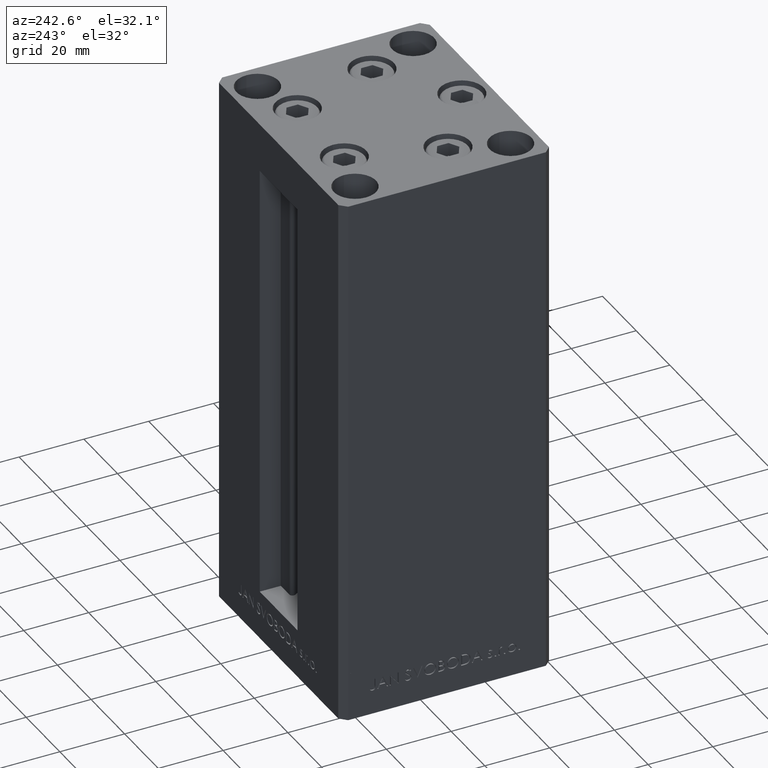
[diagram: clean part render]
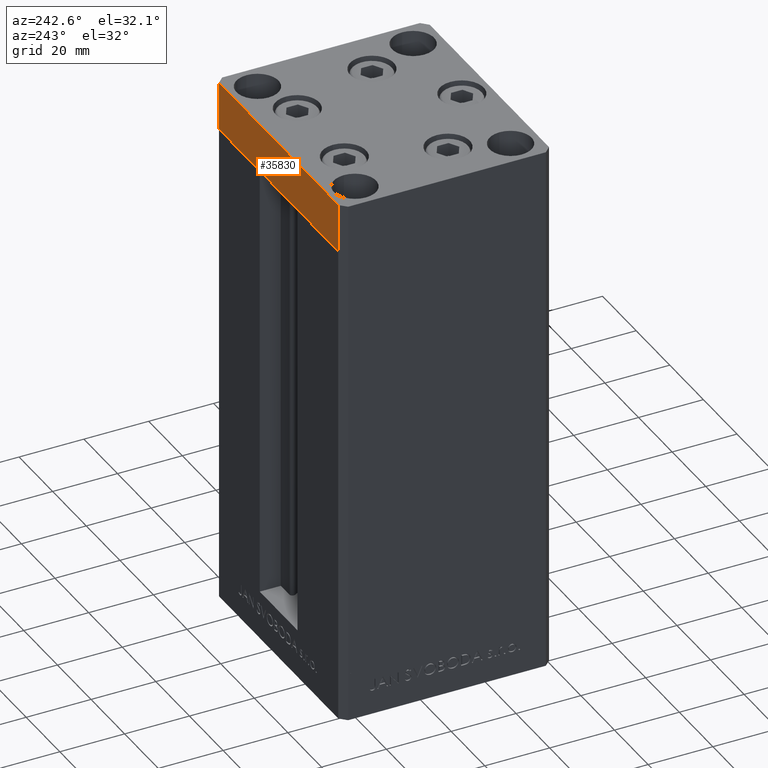
[diagram: same view with one face highlighted and labeled with its STEP entity id]
A machine part, auxiliary view. The second image highlights one B-rep face of the part: STEP entity #35830.
In plain terms, the highlighted planar face has unit normal (-0, 1, 0).
Its self-contained STEP definition (entity closure, byte-faithful):
#25 = FACE_OUTER_BOUND ( 'NONE', #12633, .T. ) ;
#623 = ORIENTED_EDGE ( 'NONE', *, *, #39456, .T. ) ;
#2610 = VERTEX_POINT ( 'NONE', #19118 ) ;
#7313 = CARTESIAN_POINT ( 'NONE',  ( -35.50000000000002842, 32.49999999999999289, -15.00000000000000000 ) ) ;
#9798 = VERTEX_POINT ( 'NONE', #7313 ) ;
#11329 = CARTESIAN_POINT ( 'NONE',  ( 35.49999999999992184, 32.50000000000000711, -15.00000000000000000 ) ) ;
#12237 = DIRECTION ( 'NONE',  ( 0.000000000000000000, 0.000000000000000000, 1.000000000000000000 ) ) ;
#12633 = EDGE_LOOP ( 'NONE', ( #29859, #35291, #623, #24949 ) ) ;
#13019 = CARTESIAN_POINT ( 'NONE',  ( 35.49999999999992184, 32.50000000000000711, 0.000000000000000000 ) ) ;
#14659 = AXIS2_PLACEMENT_3D ( 'NONE', #11329, #45085, #29577 ) ;
#14774 = VECTOR ( 'NONE', #21507, 1000.000000000000000 ) ;
#15108 = EDGE_CURVE ( 'NONE', #39837, #2610, #41035, .T. ) ;
#16074 = CARTESIAN_POINT ( 'NONE',  ( 35.49999999999992184, 32.50000000000000711, -15.00000000000000000 ) ) ;
#19118 = CARTESIAN_POINT ( 'NONE',  ( -35.50000000000002842, 32.49999999999999289, 0.000000000000000000 ) ) ;
#19651 = CARTESIAN_POINT ( 'NONE',  ( -35.50000000000002842, 32.49999999999999289, -15.00000000000000000 ) ) ;
#20572 = VECTOR ( 'NONE', #29702, 1000.000000000000000 ) ;
#20722 = VERTEX_POINT ( 'NONE', #20984 ) ;
#20984 = CARTESIAN_POINT ( 'NONE',  ( 35.49999999999992184, 32.50000000000000711, -15.00000000000000000 ) ) ;
#21507 = DIRECTION ( 'NONE',  ( -1.000000000000000000, -1.954618001100629052E-16, 0.000000000000000000 ) ) ;
#23345 = LINE ( 'NONE', #19651, #34078 ) ;
#23847 = EDGE_CURVE ( 'NONE', #9798, #2610, #23345, .T. ) ;
#24949 = ORIENTED_EDGE ( 'NONE', *, *, #23847, .T. ) ;
#26376 = PLANE ( 'NONE',  #14659 ) ;
#29577 = DIRECTION ( 'NONE',  ( -1.000000000000000000, -1.954618001100629052E-16, 0.000000000000000000 ) ) ;
#29702 = DIRECTION ( 'NONE',  ( -1.000000000000000000, -1.954618001100629052E-16, 0.000000000000000000 ) ) ;
#29859 = ORIENTED_EDGE ( 'NONE', *, *, #15108, .F. ) ;
#30874 = DIRECTION ( 'NONE',  ( 0.000000000000000000, 0.000000000000000000, 1.000000000000000000 ) ) ;
#32826 = LINE ( 'NONE', #44891, #14774 ) ;
#33155 = CARTESIAN_POINT ( 'NONE',  ( 35.49999999999992184, 32.50000000000000711, 0.000000000000000000 ) ) ;
#34078 = VECTOR ( 'NONE', #12237, 1000.000000000000000 ) ;
#35291 = ORIENTED_EDGE ( 'NONE', *, *, #43680, .F. ) ;
#35830 = ADVANCED_FACE ( 'NONE', ( #25 ), #26376, .T. ) ;
#39456 = EDGE_CURVE ( 'NONE', #20722, #9798, #32826, .T. ) ;
#39837 = VERTEX_POINT ( 'NONE', #13019 ) ;
#41035 = LINE ( 'NONE', #33155, #20572 ) ;
#42186 = LINE ( 'NONE', #16074, #47134 ) ;
#43680 = EDGE_CURVE ( 'NONE', #20722, #39837, #42186, .T. ) ;
#44891 = CARTESIAN_POINT ( 'NONE',  ( 35.49999999999992184, 32.50000000000000711, -15.00000000000000000 ) ) ;
#45085 = DIRECTION ( 'NONE',  ( -1.954618001100629052E-16, 1.000000000000000000, 0.000000000000000000 ) ) ;
#47134 = VECTOR ( 'NONE', #30874, 1000.000000000000000 ) ;